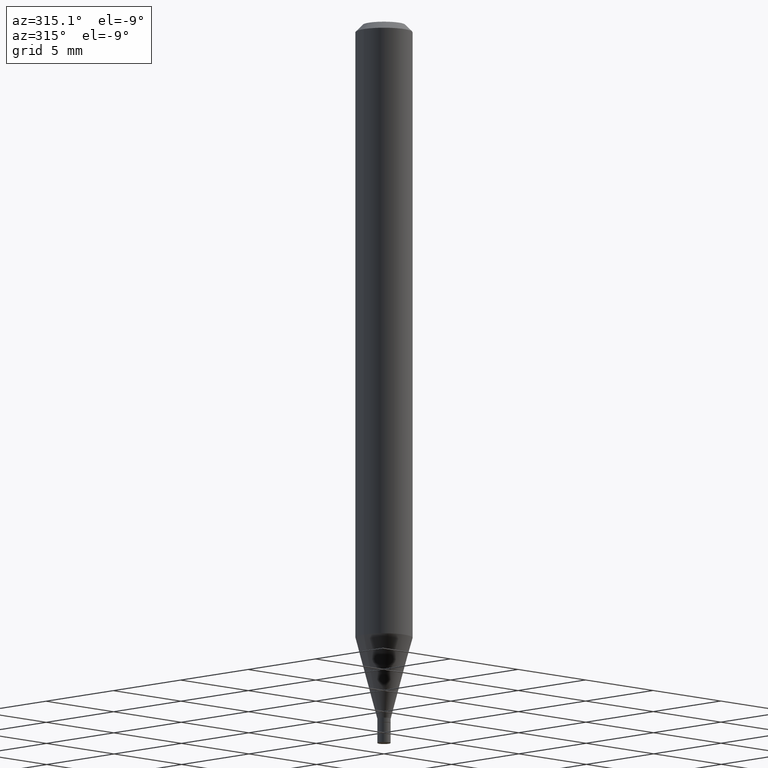
[diagram: clean part render]
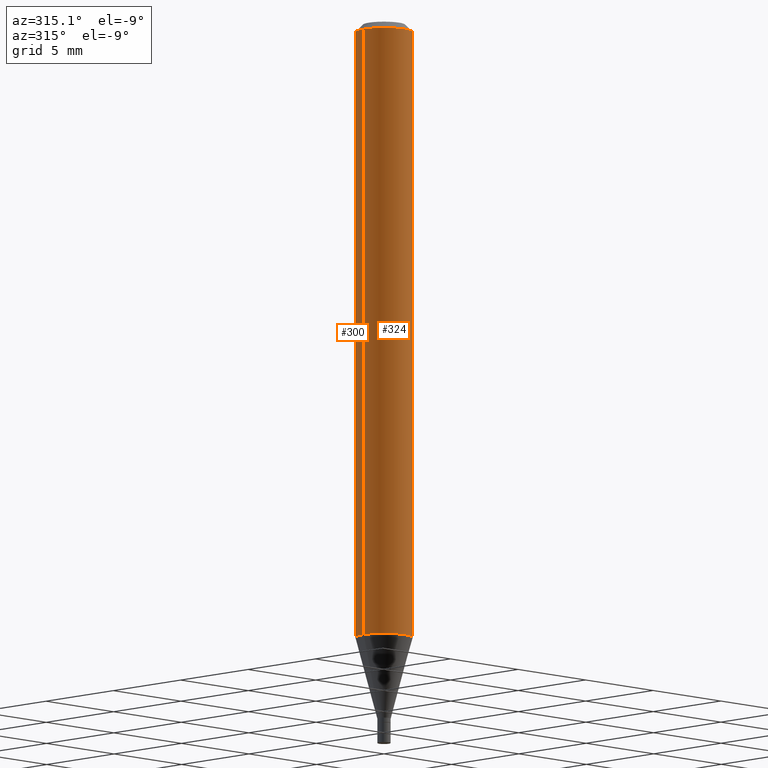
[diagram: same view with one multi-face feature highlighted, each face labeled with its STEP entity id]
A machine part, auxiliary view. The highlighted faces form ONE feature: a constant-radius fillet chain: 2 tangent blend faces with common blend radius 1.4999 mm. The faces share edges in the B-rep.
Their STEP definitions:
[1] entity #300 (Cylinder):
#38 = LINE ( 'NONE', #118, #149 ) ;
#47 = ORIENTED_EDGE ( 'NONE', *, *, #277, .T. ) ;
#56 = CARTESIAN_POINT ( 'NONE',  ( 3.668203209277705088E-31, -5.237222008264718399E-17, -0.01499999999999999944 ) ) ;
#92 = CARTESIAN_POINT ( 'NONE',  ( 0.05904999999999999832, -4.123439461173740327E-16, 2.879382386107500220E-30 ) ) ;
#115 = ORIENTED_EDGE ( 'NONE', *, *, #202, .T. ) ;
#118 = CARTESIAN_POINT ( 'NONE',  ( -0.05904999999999999832, 4.195754854663391478E-16, -2.904631170795521892E-30 ) ) ;
#120 = VERTEX_POINT ( 'NONE', #404 ) ;
#131 = CIRCLE ( 'NONE', #158, 0.05904999999999999832 ) ;
#133 = EDGE_CURVE ( 'NONE', #279, #120, #131, .T. ) ;
#136 = CARTESIAN_POINT ( 'NONE',  ( 0.05904999999999999832, -4.881875450902681297E-15, -1.280124700957509631 ) ) ;
#149 = VECTOR ( 'NONE', #352, 39.37007874015748143 ) ;
#152 = EDGE_CURVE ( 'NONE', #218, #279, #274, .T. ) ;
#158 = AXIS2_PLACEMENT_3D ( 'NONE', #56, #364, #205 ) ;
#164 = AXIS2_PLACEMENT_3D ( 'NONE', #170, #332, #297 ) ;
#170 = CARTESIAN_POINT ( 'NONE',  ( 3.130505024218666206E-29, -4.469531504785306377E-15, -1.280124700957509631 ) ) ;
#202 = EDGE_CURVE ( 'NONE', #218, #308, #365, .T. ) ;
#205 = DIRECTION ( 'NONE',  ( 1.000000000000000000, -6.982962677686266711E-15, 0.000000000000000000 ) ) ;
#217 = CARTESIAN_POINT ( 'NONE',  ( -0.05904999999999999832, -4.049956019318968462E-15, -1.280124700957509631 ) ) ;
#218 = VERTEX_POINT ( 'NONE', #136 ) ;
#223 = DIRECTION ( 'NONE',  ( -2.445468806185136597E-29, 3.491481338843145583E-15, 1.000000000000000000 ) ) ;
#242 = DIRECTION ( 'NONE',  ( 1.000000000000000000, -6.982962677686266711E-15, 4.876176775795936353E-29 ) ) ;
#243 = ORIENTED_EDGE ( 'NONE', *, *, #133, .F. ) ;
#256 = FACE_OUTER_BOUND ( 'NONE', #298, .T. ) ;
#274 = LINE ( 'NONE', #92, #408 ) ;
#277 = EDGE_CURVE ( 'NONE', #308, #120, #38, .T. ) ;
#279 = VERTEX_POINT ( 'NONE', #454 ) ;
#287 = CYLINDRICAL_SURFACE ( 'NONE', #361, 0.05904999999999999832 ) ;
#297 = DIRECTION ( 'NONE',  ( 1.000000000000000000, -6.982962677686273021E-15, 0.000000000000000000 ) ) ;
#298 = EDGE_LOOP ( 'NONE', ( #115, #47, #243, #412 ) ) ;
#299 = DIRECTION ( 'NONE',  ( -2.445468806185136877E-29, 3.491481338843145188E-15, 1.000000000000000000 ) ) ;
#300 = ADVANCED_FACE ( 'NONE', ( #256 ), #287, .T. ) ;
#308 = VERTEX_POINT ( 'NONE', #217 ) ;
#332 = DIRECTION ( 'NONE',  ( -2.445468806185136597E-29, 3.491481338843145583E-15, 1.000000000000000000 ) ) ;
#352 = DIRECTION ( 'NONE',  ( -2.445468806185136877E-29, 3.491481338843145188E-15, 1.000000000000000000 ) ) ;
#361 = AXIS2_PLACEMENT_3D ( 'NONE', #423, #223, #242 ) ;
#364 = DIRECTION ( 'NONE',  ( -2.445468806185136597E-29, 3.491481338843145583E-15, 1.000000000000000000 ) ) ;
#365 = CIRCLE ( 'NONE', #164, 0.05904999999999999832 ) ;
#404 = CARTESIAN_POINT ( 'NONE',  ( -0.05904999999999999832, -1.841376376967637827E-15, -0.01499999999999999944 ) ) ;
#408 = VECTOR ( 'NONE', #299, 39.37007874015748143 ) ;
#412 = ORIENTED_EDGE ( 'NONE', *, *, #152, .F. ) ;
#423 = CARTESIAN_POINT ( 'NONE',  ( 0.000000000000000000, 0.000000000000000000, 0.000000000000000000 ) ) ;
#454 = CARTESIAN_POINT ( 'NONE',  ( 0.05904999999999999832, -4.647161662000212105E-16, -0.01499999999999999944 ) ) ;
[2] entity #324 (Cylinder):
#12 = ORIENTED_EDGE ( 'NONE', *, *, #277, .F. ) ;
#15 = CARTESIAN_POINT ( 'NONE',  ( 3.668203209277705088E-31, -5.237222008264718399E-17, -0.01499999999999999944 ) ) ;
#33 = ORIENTED_EDGE ( 'NONE', *, *, #152, .T. ) ;
#35 = CARTESIAN_POINT ( 'NONE',  ( 0.000000000000000000, 0.000000000000000000, 0.000000000000000000 ) ) ;
#38 = LINE ( 'NONE', #118, #149 ) ;
#91 = AXIS2_PLACEMENT_3D ( 'NONE', #35, #355, #309 ) ;
#92 = CARTESIAN_POINT ( 'NONE',  ( 0.05904999999999999832, -4.123439461173740327E-16, 2.879382386107500220E-30 ) ) ;
#114 = CYLINDRICAL_SURFACE ( 'NONE', #91, 0.05904999999999999832 ) ;
#118 = CARTESIAN_POINT ( 'NONE',  ( -0.05904999999999999832, 4.195754854663391478E-16, -2.904631170795521892E-30 ) ) ;
#119 = AXIS2_PLACEMENT_3D ( 'NONE', #189, #377, #420 ) ;
#120 = VERTEX_POINT ( 'NONE', #404 ) ;
#136 = CARTESIAN_POINT ( 'NONE',  ( 0.05904999999999999832, -4.881875450902681297E-15, -1.280124700957509631 ) ) ;
#149 = VECTOR ( 'NONE', #352, 39.37007874015748143 ) ;
#152 = EDGE_CURVE ( 'NONE', #218, #279, #274, .T. ) ;
#172 = DIRECTION ( 'NONE',  ( -2.445468806185136597E-29, 3.491481338843145583E-15, 1.000000000000000000 ) ) ;
#178 = ORIENTED_EDGE ( 'NONE', *, *, #214, .F. ) ;
#189 = CARTESIAN_POINT ( 'NONE',  ( 3.130505024218666206E-29, -4.469531504785306377E-15, -1.280124700957509631 ) ) ;
#195 = FACE_OUTER_BOUND ( 'NONE', #435, .T. ) ;
#214 = EDGE_CURVE ( 'NONE', #120, #279, #296, .T. ) ;
#217 = CARTESIAN_POINT ( 'NONE',  ( -0.05904999999999999832, -4.049956019318968462E-15, -1.280124700957509631 ) ) ;
#218 = VERTEX_POINT ( 'NONE', #136 ) ;
#274 = LINE ( 'NONE', #92, #408 ) ;
#277 = EDGE_CURVE ( 'NONE', #308, #120, #38, .T. ) ;
#279 = VERTEX_POINT ( 'NONE', #454 ) ;
#296 = CIRCLE ( 'NONE', #384, 0.05904999999999999832 ) ;
#299 = DIRECTION ( 'NONE',  ( -2.445468806185136877E-29, 3.491481338843145188E-15, 1.000000000000000000 ) ) ;
#308 = VERTEX_POINT ( 'NONE', #217 ) ;
#309 = DIRECTION ( 'NONE',  ( 1.000000000000000000, -6.982962677686266711E-15, 4.876176775795936353E-29 ) ) ;
#313 = ORIENTED_EDGE ( 'NONE', *, *, #360, .T. ) ;
#324 = ADVANCED_FACE ( 'NONE', ( #195 ), #114, .T. ) ;
#352 = DIRECTION ( 'NONE',  ( -2.445468806185136877E-29, 3.491481338843145188E-15, 1.000000000000000000 ) ) ;
#355 = DIRECTION ( 'NONE',  ( -2.445468806185136597E-29, 3.491481338843145583E-15, 1.000000000000000000 ) ) ;
#360 = EDGE_CURVE ( 'NONE', #308, #218, #429, .T. ) ;
#377 = DIRECTION ( 'NONE',  ( -2.445468806185136597E-29, 3.491481338843145583E-15, 1.000000000000000000 ) ) ;
#384 = AXIS2_PLACEMENT_3D ( 'NONE', #15, #172, #446 ) ;
#404 = CARTESIAN_POINT ( 'NONE',  ( -0.05904999999999999832, -1.841376376967637827E-15, -0.01499999999999999944 ) ) ;
#408 = VECTOR ( 'NONE', #299, 39.37007874015748143 ) ;
#420 = DIRECTION ( 'NONE',  ( 1.000000000000000000, -6.982962677686273021E-15, 0.000000000000000000 ) ) ;
#429 = CIRCLE ( 'NONE', #119, 0.05904999999999999832 ) ;
#435 = EDGE_LOOP ( 'NONE', ( #12, #313, #33, #178 ) ) ;
#446 = DIRECTION ( 'NONE',  ( 1.000000000000000000, -6.982962677686266711E-15, 0.000000000000000000 ) ) ;
#454 = CARTESIAN_POINT ( 'NONE',  ( 0.05904999999999999832, -4.647161662000212105E-16, -0.01499999999999999944 ) ) ;